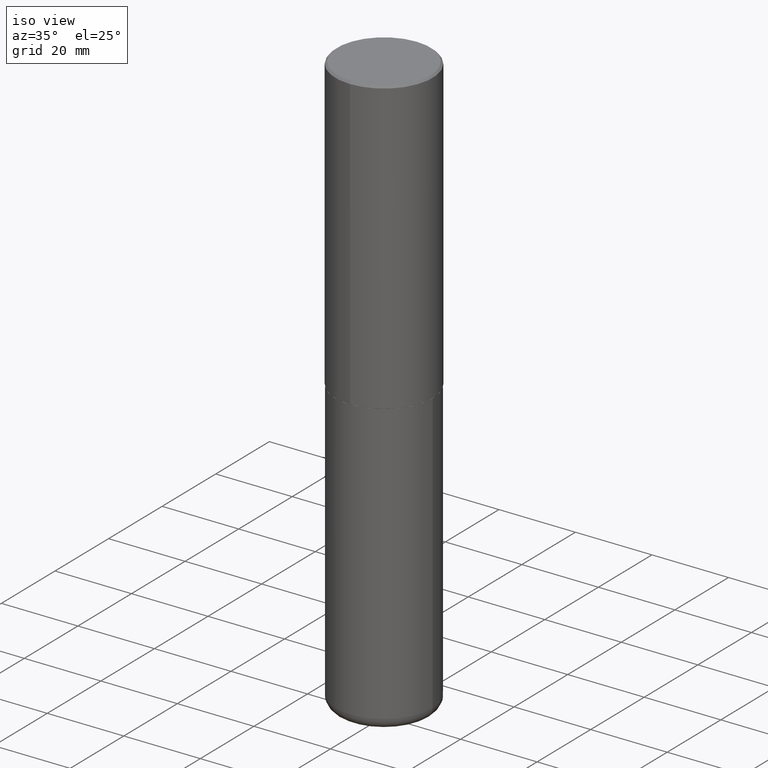
[diagram: clean part render]
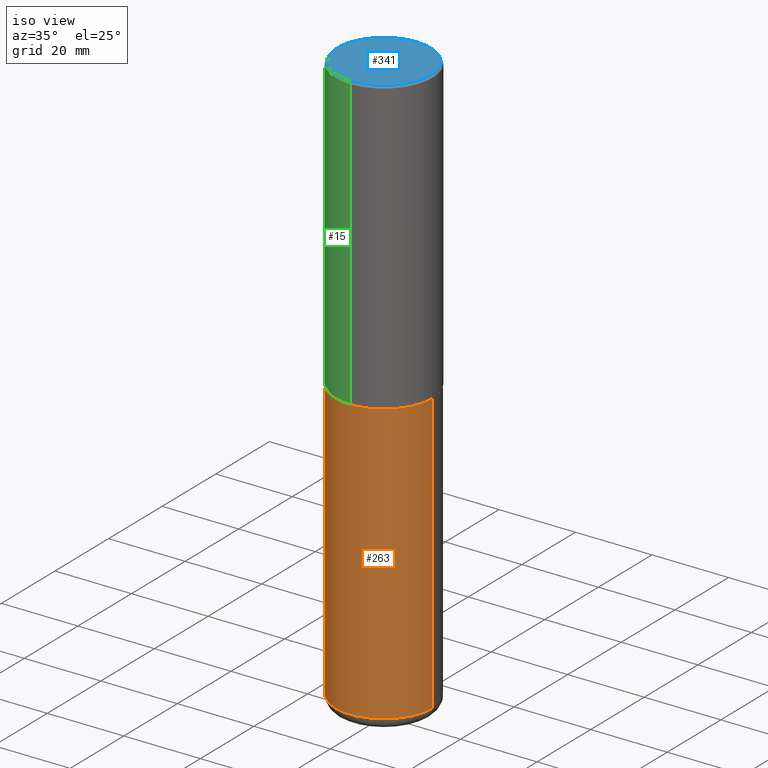
[diagram: same view with three faces highlighted in distinct colors, each labeled with its STEP entity id]
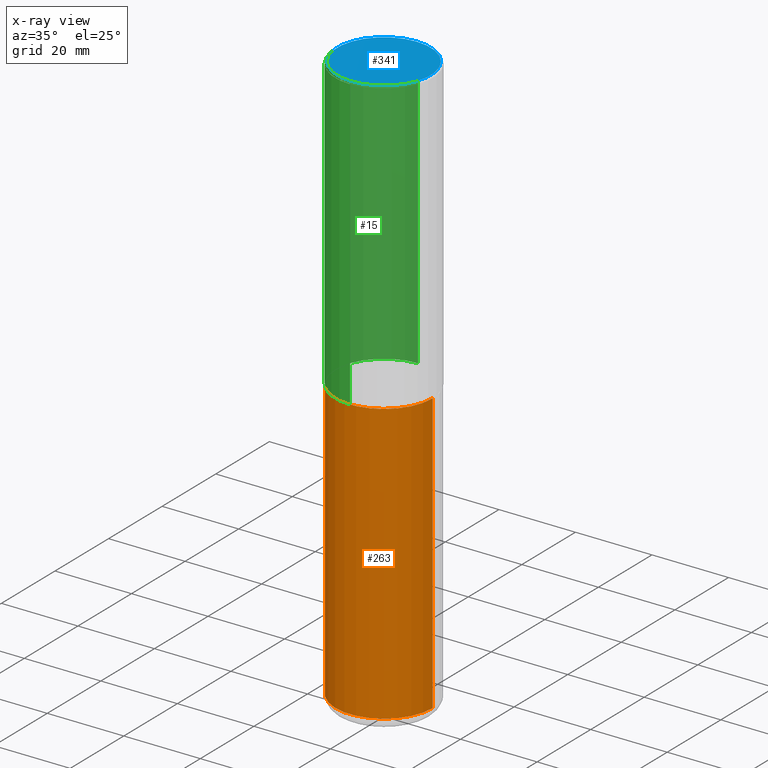
[diagram: x-ray of the same camera — body ghosted, the three highlighted faces saturated]
A machine part, iso view with three faces highlighted in distinct colors.
The next image is the same camera in x-ray (body ghosted, the three faces saturated) — at least one of them is partly hidden behind the body in this view.
Their STEP definitions:

[orange] entity #263 — the highlighted cylindrical surface (partial cylindrical patch) has radius 12.7 mm, axis along (-0, 0, 1).
#19 = EDGE_CURVE ( 'NONE', #355, #38, #157, .T. ) ;
#23 = DIRECTION ( 'NONE',  ( -2.445468806185136597E-29, 3.491481338843145583E-15, 1.000000000000000000 ) ) ;
#38 = VERTEX_POINT ( 'NONE', #152 ) ;
#63 = DIRECTION ( 'NONE',  ( -2.445468806185136597E-29, 3.491481338843145583E-15, 1.000000000000000000 ) ) ;
#68 = CARTESIAN_POINT ( 'NONE',  ( 0.000000000000000000, 0.000000000000000000, 0.000000000000000000 ) ) ;
#69 = CARTESIAN_POINT ( 'NONE',  ( -0.5000000000000000000, 3.552713678800500929E-15, -2.459467545127452891E-29 ) ) ;
#89 = DIRECTION ( 'NONE',  ( 1.000000000000000000, -6.982962677686266711E-15, 0.000000000000000000 ) ) ;
#98 = DIRECTION ( 'NONE',  ( -2.445468806185136877E-29, 3.491481338843145188E-15, 1.000000000000000000 ) ) ;
#101 = DIRECTION ( 'NONE',  ( 1.000000000000000000, -6.982962677686266711E-15, 4.876176775795935793E-29 ) ) ;
#107 = VECTOR ( 'NONE', #352, 39.37007874015748143 ) ;
#122 = CARTESIAN_POINT ( 'NONE',  ( 7.336406418555409790E-29, -1.047444401652943635E-14, -3.000000000000000444 ) ) ;
#129 = FACE_OUTER_BOUND ( 'NONE', #360, .T. ) ;
#152 = CARTESIAN_POINT ( 'NONE',  ( 0.5000000000000000000, -1.396592535537257129E-14, -3.000000000000000444 ) ) ;
#157 = CIRCLE ( 'NONE', #394, 0.5000000000000000000 ) ;
#163 = CYLINDRICAL_SURFACE ( 'NONE', #279, 0.5000000000000000000 ) ;
#172 = AXIS2_PLACEMENT_3D ( 'NONE', #401, #275, #301 ) ;
#174 = CARTESIAN_POINT ( 'NONE',  ( -0.5000000000000000000, -1.194946346566306607E-14, -3.000000000000000444 ) ) ;
#197 = CARTESIAN_POINT ( 'NONE',  ( 0.5000000000000000000, -3.491481338843133355E-15, 2.438088387897967896E-29 ) ) ;
#225 = LINE ( 'NONE', #69, #107 ) ;
#226 = CARTESIAN_POINT ( 'NONE',  ( -0.5000000000000000000, -1.697719659359719830E-14, -5.880000000000000782 ) ) ;
#231 = VECTOR ( 'NONE', #98, 39.37007874015748143 ) ;
#234 = ORIENTED_EDGE ( 'NONE', *, *, #290, .T. ) ;
#243 = ORIENTED_EDGE ( 'NONE', *, *, #321, .F. ) ;
#263 = ADVANCED_FACE ( 'NONE', ( #129 ), #163, .T. ) ;
#273 = VERTEX_POINT ( 'NONE', #382 ) ;
#275 = DIRECTION ( 'NONE',  ( -2.445468806185136597E-29, 3.491481338843145583E-15, 1.000000000000000000 ) ) ;
#279 = AXIS2_PLACEMENT_3D ( 'NONE', #68, #63, #101 ) ;
#290 = EDGE_CURVE ( 'NONE', #273, #38, #297, .T. ) ;
#291 = ORIENTED_EDGE ( 'NONE', *, *, #353, .T. ) ;
#297 = LINE ( 'NONE', #197, #231 ) ;
#301 = DIRECTION ( 'NONE',  ( 1.000000000000000000, -6.982962677686269077E-15, 0.000000000000000000 ) ) ;
#308 = VERTEX_POINT ( 'NONE', #226 ) ;
#321 = EDGE_CURVE ( 'NONE', #308, #355, #225, .T. ) ;
#330 = CIRCLE ( 'NONE', #172, 0.5000000000000001110 ) ;
#352 = DIRECTION ( 'NONE',  ( -2.445468806185136877E-29, 3.491481338843145188E-15, 1.000000000000000000 ) ) ;
#353 = EDGE_CURVE ( 'NONE', #308, #273, #330, .T. ) ;
#355 = VERTEX_POINT ( 'NONE', #174 ) ;
#360 = EDGE_LOOP ( 'NONE', ( #243, #291, #234, #400 ) ) ;
#382 = CARTESIAN_POINT ( 'NONE',  ( 0.5000000000000000000, -2.402139161124082943E-14, -5.880000000000000782 ) ) ;
#394 = AXIS2_PLACEMENT_3D ( 'NONE', #122, #23, #89 ) ;
#400 = ORIENTED_EDGE ( 'NONE', *, *, #19, .F. ) ;
#401 = CARTESIAN_POINT ( 'NONE',  ( 1.437935658036860328E-28, -2.052991027239769923E-14, -5.880000000000000782 ) ) ;

[blue] entity #341 — the highlighted planar face has unit normal (0, -0, -1).
#1 = FACE_OUTER_BOUND ( 'NONE', #327, .T. ) ;
#41 = PLANE ( 'NONE',  #381 ) ;
#76 = CARTESIAN_POINT ( 'NONE',  ( 3.421651712066270057E-15, 0.4799999999999999267, -1.573466742882299844E-15 ) ) ;
#79 = ORIENTED_EDGE ( 'NONE', *, *, #93, .T. ) ;
#93 = EDGE_CURVE ( 'NONE', #110, #414, #251, .T. ) ;
#110 = VERTEX_POINT ( 'NONE', #179 ) ;
#146 = CARTESIAN_POINT ( 'NONE',  ( -2.514251026725007597E-45, 3.591362713352002573E-31, 1.028366415314403880E-16 ) ) ;
#160 = DIRECTION ( 'NONE',  ( -6.982962677686265922E-15, -1.000000000000000000, 3.492298717528625990E-15 ) ) ;
#179 = CARTESIAN_POINT ( 'NONE',  ( -3.361644018908049661E-15, -0.4799999999999999267, 1.779140025945180744E-15 ) ) ;
#190 = DIRECTION ( 'NONE',  ( 2.444898033699711371E-29, -3.492298717528626385E-15, -1.000000000000000000 ) ) ;
#235 = DIRECTION ( 'NONE',  ( -2.444898033699712212E-29, 3.492298717528625990E-15, 1.000000000000000000 ) ) ;
#237 = ORIENTED_EDGE ( 'NONE', *, *, #334, .T. ) ;
#251 = CIRCLE ( 'NONE', #285, 0.4799999999999999267 ) ;
#285 = AXIS2_PLACEMENT_3D ( 'NONE', #146, #289, #413 ) ;
#289 = DIRECTION ( 'NONE',  ( -2.444898033699712212E-29, 3.492298717528625990E-15, 1.000000000000000000 ) ) ;
#327 = EDGE_LOOP ( 'NONE', ( #237, #79 ) ) ;
#334 = EDGE_CURVE ( 'NONE', #414, #110, #348, .T. ) ;
#341 = ADVANCED_FACE ( 'NONE', ( #1 ), #41, .F. ) ;
#348 = CIRCLE ( 'NONE', #366, 0.4799999999999999267 ) ;
#351 = CARTESIAN_POINT ( 'NONE',  ( 3.351822085289407153E-15, 0.4799999999999999267, -1.624885063648019971E-15 ) ) ;
#366 = AXIS2_PLACEMENT_3D ( 'NONE', #391, #235, #160 ) ;
#381 = AXIS2_PLACEMENT_3D ( 'NONE', #351, #190, #403 ) ;
#391 = CARTESIAN_POINT ( 'NONE',  ( -2.514251026725007597E-45, 3.591362713352002573E-31, 1.028366415314403880E-16 ) ) ;
#403 = DIRECTION ( 'NONE',  ( 6.982962677686265922E-15, 1.000000000000000000, -3.492298717528626385E-15 ) ) ;
#413 = DIRECTION ( 'NONE',  ( -6.982962677686265922E-15, -1.000000000000000000, 3.492298717528625990E-15 ) ) ;
#414 = VERTEX_POINT ( 'NONE', #76 ) ;

[green] entity #15 — the highlighted cylindrical surface (partial cylindrical patch) has radius 12.7 mm, axis along (-0, 0, 1).
#15 = ADVANCED_FACE ( 'NONE', ( #92 ), #184, .T. ) ;
#17 = AXIS2_PLACEMENT_3D ( 'NONE', #343, #379, #59 ) ;
#20 = DIRECTION ( 'NONE',  ( -6.982962677686265922E-15, -1.000000000000000000, 3.492298717528625990E-15 ) ) ;
#30 = EDGE_CURVE ( 'NONE', #306, #362, #78, .T. ) ;
#54 = LINE ( 'NONE', #409, #112 ) ;
#59 = DIRECTION ( 'NONE',  ( -6.982962677686266711E-15, -1.000000000000000000, 3.278217592397114284E-15 ) ) ;
#60 = CIRCLE ( 'NONE', #124, 0.5000000000000000000 ) ;
#62 = DIRECTION ( 'NONE',  ( -6.982962677686265922E-15, -1.000000000000000000, 3.491643216902136408E-15 ) ) ;
#64 = ORIENTED_EDGE ( 'NONE', *, *, #162, .F. ) ;
#65 = CARTESIAN_POINT ( 'NONE',  ( 3.552713678800539584E-15, 0.4999999999999898970, -2.999000000000001886 ) ) ;
#74 = ORIENTED_EDGE ( 'NONE', *, *, #393, .T. ) ;
#75 = CARTESIAN_POINT ( 'NONE',  ( -3.491481338843061569E-15, -0.5000000000000107692, -2.998999999999998778 ) ) ;
#78 = CIRCLE ( 'NONE', #17, 0.5000000000000002220 ) ;
#92 = FACE_OUTER_BOUND ( 'NONE', #271, .T. ) ;
#111 = CARTESIAN_POINT ( 'NONE',  ( -3.491481338843133750E-15, -0.5000000000000001110, 1.746149358764313390E-15 ) ) ;
#112 = VECTOR ( 'NONE', #188, 39.37007874015748143 ) ;
#118 = DIRECTION ( 'NONE',  ( -2.444898033699712212E-29, 3.492298717528625990E-15, 1.000000000000000000 ) ) ;
#123 = CARTESIAN_POINT ( 'NONE',  ( 3.491481338843133355E-15, 0.4999999999999999445, -0.02000000000000185310 ) ) ;
#124 = AXIS2_PLACEMENT_3D ( 'NONE', #213, #118, #62 ) ;
#128 = VERTEX_POINT ( 'NONE', #250 ) ;
#131 = ORIENTED_EDGE ( 'NONE', *, *, #170, .F. ) ;
#162 = EDGE_CURVE ( 'NONE', #269, #128, #60, .T. ) ;
#169 = DIRECTION ( 'NONE',  ( -2.444898033699711931E-29, 3.492298717528626385E-15, 1.000000000000000000 ) ) ;
#170 = EDGE_CURVE ( 'NONE', #306, #269, #54, .T. ) ;
#184 = CYLINDRICAL_SURFACE ( 'NONE', #387, 0.5000000000000001110 ) ;
#188 = DIRECTION ( 'NONE',  ( -2.444898033699711931E-29, 3.492298717528626385E-15, 1.000000000000000000 ) ) ;
#213 = CARTESIAN_POINT ( 'NONE',  ( 4.889796067399450837E-31, -6.984597435057287381E-17, -0.02000000000000010797 ) ) ;
#250 = CARTESIAN_POINT ( 'NONE',  ( -3.430248998885764992E-15, -0.5000000000000001110, -0.01999999999999835937 ) ) ;
#269 = VERTEX_POINT ( 'NONE', #123 ) ;
#271 = EDGE_LOOP ( 'NONE', ( #131, #368, #74, #64 ) ) ;
#306 = VERTEX_POINT ( 'NONE', #65 ) ;
#331 = LINE ( 'NONE', #111, #396 ) ;
#343 = CARTESIAN_POINT ( 'NONE',  ( 7.332249203065438921E-29, -1.047340385386834930E-14, -2.999000000000000554 ) ) ;
#347 = DIRECTION ( 'NONE',  ( -2.444898033699712212E-29, 3.492298717528625990E-15, 1.000000000000000000 ) ) ;
#362 = VERTEX_POINT ( 'NONE', #75 ) ;
#368 = ORIENTED_EDGE ( 'NONE', *, *, #30, .T. ) ;
#371 = CARTESIAN_POINT ( 'NONE',  ( 0.000000000000000000, 0.000000000000000000, 0.000000000000000000 ) ) ;
#379 = DIRECTION ( 'NONE',  ( -2.444898033699712212E-29, 3.492298717528625990E-15, 1.000000000000000000 ) ) ;
#387 = AXIS2_PLACEMENT_3D ( 'NONE', #371, #347, #20 ) ;
#393 = EDGE_CURVE ( 'NONE', #362, #128, #331, .T. ) ;
#396 = VECTOR ( 'NONE', #169, 39.37007874015748143 ) ;
#409 = CARTESIAN_POINT ( 'NONE',  ( 3.552713678800501718E-15, 0.5000000000000001110, -1.746149358764313390E-15 ) ) ;